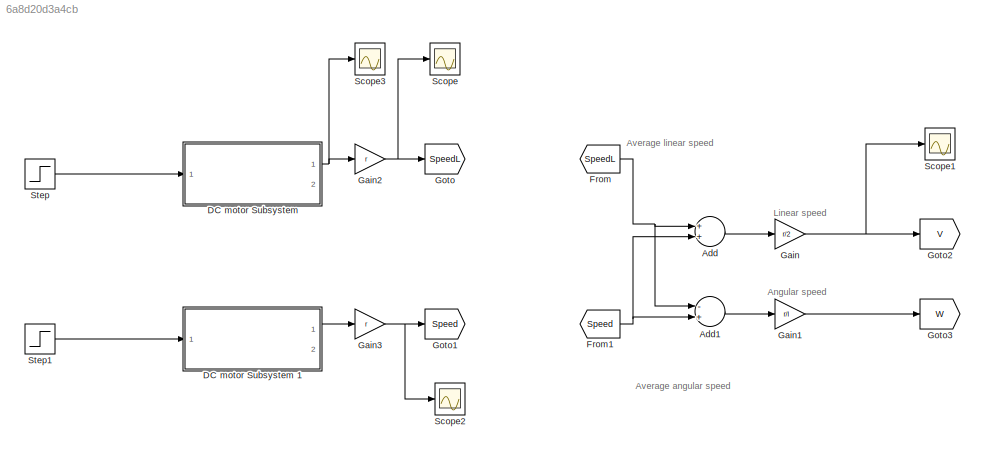
MODEL slx_6a8d20d3a4cb
KIND model
CONFIG AbsTol = auto
CONFIG EnableMultiTasking = off
CONFIG FixedStep = auto
CONFIG MaxStep = auto
CONFIG MinStep = auto
CONFIG RelTol = 1e-3
CONFIG SampleTimeConstraint = Unconstrained
CONFIG Solver = VariableStepAuto
CONFIG SolverName = VariableStepAuto
CONFIG StartTime = 0.0
CONFIG StopTime = 10.0
BLOCK [Sum] Add
  InputSameDT = off
  OutDataTypeStr = Inherit: Inherit via internal rule
  Ports = [2, 1]
  SaturateOnIntegerOverflow = off
BLOCK [Sum] Add1
  InputSameDT = off
  Inputs = -+
  OutDataTypeStr = Inherit: Inherit via internal rule
  Ports = [2, 1]
  SaturateOnIntegerOverflow = off
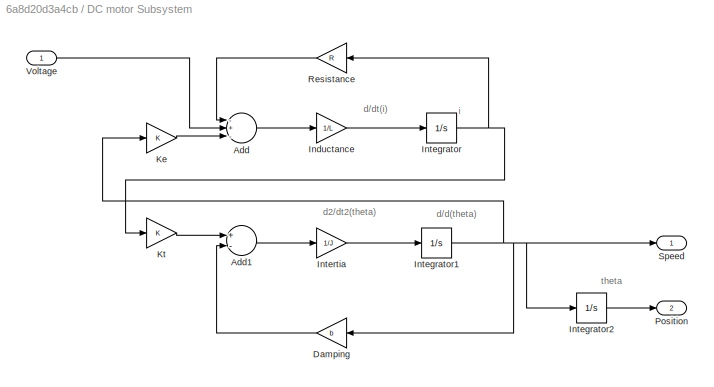
BLOCK [SubSystem] DC motor Subsystem 
  Ports = [1, 2]
  RequestExecContextInheritance = off
  Variant = off
BLOCK [Sum] DC motor Subsystem /Add
  InputSameDT = off
  Inputs = -+-
  OutDataTypeStr = Inherit: Inherit via internal rule
  Ports = [3, 1]
  SaturateOnIntegerOverflow = off
BLOCK [Sum] DC motor Subsystem /Add1
  InputSameDT = off
  Inputs = +-
  OutDataTypeStr = Inherit: Inherit via internal rule
  Ports = [2, 1]
  SaturateOnIntegerOverflow = off
BLOCK [Gain] DC motor Subsystem /Damping 
  Gain = b
  OutDataTypeStr = Inherit: Inherit via internal rule
  ParamDataTypeStr = Inherit: Inherit via internal rule
  SaturateOnIntegerOverflow = off
BLOCK [Gain] DC motor Subsystem /Inductance 
  Gain = 1/L
  OutDataTypeStr = Inherit: Inherit via internal rule
  ParamDataTypeStr = Inherit: Inherit via internal rule
  SaturateOnIntegerOverflow = off
BLOCK [Integrator] DC motor Subsystem /Integrator
  Ports = [1, 1]
BLOCK [Integrator] DC motor Subsystem /Integrator1
  Ports = [1, 1]
BLOCK [Integrator] DC motor Subsystem /Integrator2
  Ports = [1, 1]
BLOCK [Gain] DC motor Subsystem /Intertia 
  Gain = 1/J
  OutDataTypeStr = Inherit: Inherit via internal rule
  ParamDataTypeStr = Inherit: Inherit via internal rule
  SaturateOnIntegerOverflow = off
BLOCK [Gain] DC motor Subsystem /Ke
  Gain = K
  OutDataTypeStr = Inherit: Inherit via internal rule
  ParamDataTypeStr = Inherit: Inherit via internal rule
  SaturateOnIntegerOverflow = off
BLOCK [Gain] DC motor Subsystem /Kt 
  Gain = K
  OutDataTypeStr = Inherit: Inherit via internal rule
  ParamDataTypeStr = Inherit: Inherit via internal rule
  SaturateOnIntegerOverflow = off
BLOCK [Outport] DC motor Subsystem /Position 
  IconDisplay = Port number
  Port = 2
BLOCK [Gain] DC motor Subsystem /Resistance 
  Gain = R
  OutDataTypeStr = Inherit: Inherit via internal rule
  ParamDataTypeStr = Inherit: Inherit via internal rule
  SaturateOnIntegerOverflow = off
BLOCK [Outport] DC motor Subsystem /Speed 
  IconDisplay = Port number
BLOCK [Inport] DC motor Subsystem /Voltage 
  IconDisplay = Port number
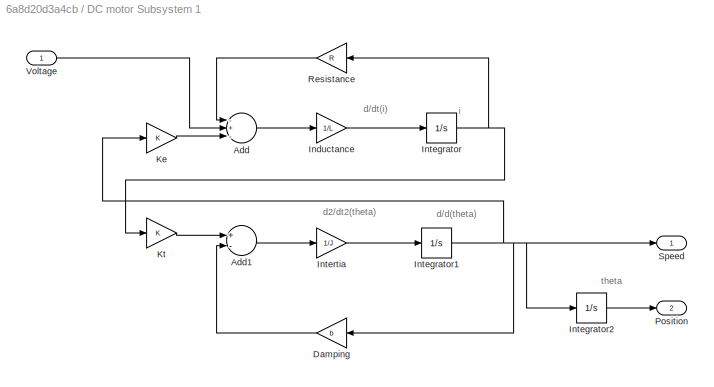
BLOCK [SubSystem] DC motor Subsystem 1
  Ports = [1, 2]
  RequestExecContextInheritance = off
  Variant = off
BLOCK [Sum] DC motor Subsystem 1/Add
  InputSameDT = off
  Inputs = -+-
  OutDataTypeStr = Inherit: Inherit via internal rule
  Ports = [3, 1]
  SaturateOnIntegerOverflow = off
BLOCK [Sum] DC motor Subsystem 1/Add1
  InputSameDT = off
  Inputs = +-
  OutDataTypeStr = Inherit: Inherit via internal rule
  Ports = [2, 1]
  SaturateOnIntegerOverflow = off
BLOCK [Gain] DC motor Subsystem 1/Damping 
  Gain = b
  OutDataTypeStr = Inherit: Inherit via internal rule
  ParamDataTypeStr = Inherit: Inherit via internal rule
  SaturateOnIntegerOverflow = off
BLOCK [Gain] DC motor Subsystem 1/Inductance 
  Gain = 1/L
  OutDataTypeStr = Inherit: Inherit via internal rule
  ParamDataTypeStr = Inherit: Inherit via internal rule
  SaturateOnIntegerOverflow = off
BLOCK [Integrator] DC motor Subsystem 1/Integrator
  Ports = [1, 1]
BLOCK [Integrator] DC motor Subsystem 1/Integrator1
  Ports = [1, 1]
BLOCK [Integrator] DC motor Subsystem 1/Integrator2
  Ports = [1, 1]
BLOCK [Gain] DC motor Subsystem 1/Intertia 
  Gain = 1/J
  OutDataTypeStr = Inherit: Inherit via internal rule
  ParamDataTypeStr = Inherit: Inherit via internal rule
  SaturateOnIntegerOverflow = off
BLOCK [Gain] DC motor Subsystem 1/Ke
  Gain = K
  OutDataTypeStr = Inherit: Inherit via internal rule
  ParamDataTypeStr = Inherit: Inherit via internal rule
  SaturateOnIntegerOverflow = off
BLOCK [Gain] DC motor Subsystem 1/Kt 
  Gain = K
  OutDataTypeStr = Inherit: Inherit via internal rule
  ParamDataTypeStr = Inherit: Inherit via internal rule
  SaturateOnIntegerOverflow = off
BLOCK [Outport] DC motor Subsystem 1/Position 
  IconDisplay = Port number
  Port = 2
BLOCK [Gain] DC motor Subsystem 1/Resistance 
  Gain = R
  OutDataTypeStr = Inherit: Inherit via internal rule
  ParamDataTypeStr = Inherit: Inherit via internal rule
  SaturateOnIntegerOverflow = off
BLOCK [Outport] DC motor Subsystem 1/Speed 
  IconDisplay = Port number
BLOCK [Inport] DC motor Subsystem 1/Voltage 
  IconDisplay = Port number
BLOCK [From] From
  GotoTag = SpeedL
BLOCK [From] From1
  GotoTag = Speed
BLOCK [Gain] Gain
  Commented = on
  Gain = r/2
  OutDataTypeStr = Inherit: Inherit via internal rule
  ParamDataTypeStr = Inherit: Inherit via internal rule
  SaturateOnIntegerOverflow = off
BLOCK [Gain] Gain1
  Commented = on
  Gain = r/l
  OutDataTypeStr = Inherit: Inherit via internal rule
  ParamDataTypeStr = Inherit: Inherit via internal rule
  SaturateOnIntegerOverflow = off
BLOCK [Gain] Gain2
  Gain = r
  OutDataTypeStr = Inherit: Inherit via internal rule
  ParamDataTypeStr = Inherit: Inherit via internal rule
  SaturateOnIntegerOverflow = off
BLOCK [Gain] Gain3
  Gain = r
  OutDataTypeStr = Inherit: Inherit via internal rule
  ParamDataTypeStr = Inherit: Inherit via internal rule
  SaturateOnIntegerOverflow = off
BLOCK [Goto] Goto
  GotoTag = SpeedL
BLOCK [Goto] Goto1
  GotoTag = Speed
BLOCK [Goto] Goto2
  GotoTag = V
BLOCK [Goto] Goto3
  GotoTag = W
BLOCK [Scope] Scope
  NumInputPorts = 1
  Ports = [1]
  ScopeSpecificationString = Simulink.scopes.TimeScopeBlockCfg('CurrentConfiguration', extmgr.ConfigurationSet(extmgr.Configuration('Core','General UI',true),extmgr.Configuration('Core','Source UI',true),extmgr.Configuration('Sources','WiredSimulink',true),extmgr.Configuration('Visuals','Time Domain',true,'SerializedDisplays',{struct('MinYLimReal','-4.49966','MaxYLimReal','40.49692','YLabelReal','','MinYLimMag','0.00000','Max...<+1356ch>
BLOCK [Scope] Scope1
  NumInputPorts = 1
  Ports = [1]
  ScopeSpecificationString = Simulink.scopes.TimeScopeBlockCfg('CurrentConfiguration', extmgr.ConfigurationSet(extmgr.Configuration('Core','General UI',true),extmgr.Configuration('Core','Source UI',true),extmgr.Configuration('Sources','WiredSimulink',true,'DataLoggingVariableName','ScopeData1'),extmgr.Configuration('Visuals','Time Domain',true,'SerializedDisplays',{struct('MinYLimReal','-4.75276','MaxYLimReal','42.77487','YLa...<+1394ch>
BLOCK [Scope] Scope2
  NumInputPorts = 1
  Ports = [1]
  ScopeSpecificationString = Simulink.scopes.TimeScopeBlockCfg('CurrentConfiguration', extmgr.ConfigurationSet(extmgr.Configuration('Core','General UI',true),extmgr.Configuration('Core','Source UI',true),extmgr.Configuration('Sources','WiredSimulink',true,'DataLoggingVariableName','ScopeData2'),extmgr.Configuration('Visuals','Time Domain',true,'SerializedDisplays',{struct('MinYLimReal','-2.81229','MaxYLimReal','25.31058','YLa...<+1395ch>
BLOCK [Scope] Scope3
  NumInputPorts = 1
  Ports = [1]
  ScopeSpecificationString = Simulink.scopes.TimeScopeBlockCfg('CurrentConfiguration', extmgr.ConfigurationSet(extmgr.Configuration('Core','General UI',true),extmgr.Configuration('Core','Source UI',true),extmgr.Configuration('Sources','WiredSimulink',true,'DataLoggingVariableName','ScopeData1'),extmgr.Configuration('Visuals','Time Domain',true,'SerializedDisplays',{struct('MinYLimReal','-89.99316','MaxYLimReal','809.93841','Y...<+1417ch>
BLOCK [Step] Step
  After = 8
  SampleTime = 0
  Time = 0.1
BLOCK [Step] Step1
  After = 5
  SampleTime = 0
  Time = 0.1
ANNOTATION (root): Angular speed
ANNOTATION (root): Average angular speed
ANNOTATION (root): Average linear speed
ANNOTATION (root): Linear speed
ANNOTATION DC motor Subsystem : d/d(theta)
ANNOTATION DC motor Subsystem : d/dt(i)
ANNOTATION DC motor Subsystem : d2/dt2(theta)
ANNOTATION DC motor Subsystem : i
ANNOTATION DC motor Subsystem : theta
ANNOTATION DC motor Subsystem 1: d/d(theta)
ANNOTATION DC motor Subsystem 1: d/dt(i)
ANNOTATION DC motor Subsystem 1: d2/dt2(theta)
ANNOTATION DC motor Subsystem 1: i
ANNOTATION DC motor Subsystem 1: theta
LINE Add1:1 -> Gain1:1
LINE Add:1 -> Gain:1
LINE DC motor Subsystem /Add1:1 -> DC motor Subsystem /Intertia :1
LINE DC motor Subsystem /Add:1 -> DC motor Subsystem /Inductance :1
LINE DC motor Subsystem /Damping :1 -> DC motor Subsystem /Add1:2
LINE DC motor Subsystem /Inductance :1 -> DC motor Subsystem /Integrator:1
NET DC motor Subsystem /Integrator1:1 -> DC motor Subsystem /Damping :1, DC motor Subsystem /Integrator2:1, DC motor Subsystem /Ke:1, DC motor Subsystem /Speed :1
LINE DC motor Subsystem /Integrator2:1 -> DC motor Subsystem /Position :1
NET DC motor Subsystem /Integrator:1 -> DC motor Subsystem /Kt :1, DC motor Subsystem /Resistance :1
LINE DC motor Subsystem /Intertia :1 -> DC motor Subsystem /Integrator1:1
LINE DC motor Subsystem /Ke:1 -> DC motor Subsystem /Add:3
LINE DC motor Subsystem /Kt :1 -> DC motor Subsystem /Add1:1
LINE DC motor Subsystem /Resistance :1 -> DC motor Subsystem /Add:1
LINE DC motor Subsystem /Voltage :1 -> DC motor Subsystem /Add:2
LINE DC motor Subsystem 1/Add1:1 -> DC motor Subsystem 1/Intertia :1
LINE DC motor Subsystem 1/Add:1 -> DC motor Subsystem 1/Inductance :1
LINE DC motor Subsystem 1/Damping :1 -> DC motor Subsystem 1/Add1:2
LINE DC motor Subsystem 1/Inductance :1 -> DC motor Subsystem 1/Integrator:1
NET DC motor Subsystem 1/Integrator1:1 -> DC motor Subsystem 1/Damping :1, DC motor Subsystem 1/Integrator2:1, DC motor Subsystem 1/Ke:1, DC motor Subsystem 1/Speed :1
LINE DC motor Subsystem 1/Integrator2:1 -> DC motor Subsystem 1/Position :1
NET DC motor Subsystem 1/Integrator:1 -> DC motor Subsystem 1/Kt :1, DC motor Subsystem 1/Resistance :1
LINE DC motor Subsystem 1/Intertia :1 -> DC motor Subsystem 1/Integrator1:1
LINE DC motor Subsystem 1/Ke:1 -> DC motor Subsystem 1/Add:3
LINE DC motor Subsystem 1/Kt :1 -> DC motor Subsystem 1/Add1:1
LINE DC motor Subsystem 1/Resistance :1 -> DC motor Subsystem 1/Add:1
LINE DC motor Subsystem 1/Voltage :1 -> DC motor Subsystem 1/Add:2
LINE DC motor Subsystem 1:1 -> Gain3:1
NET DC motor Subsystem :1 -> Gain2:1, Scope3:1
NET From1:1 -> Add1:2, Add:2
NET From:1 -> Add1:1, Add:1
LINE Gain1:1 -> Goto3:1
NET Gain2:1 -> Goto:1, Scope:1
NET Gain3:1 -> Goto1:1, Scope2:1
NET Gain:1 -> Goto2:1, Scope1:1
LINE Step1:1 -> DC motor Subsystem 1:1
LINE Step:1 -> DC motor Subsystem :1
note: NET lines group one-source signal fan-out (src -> all destinations, sorted); 1:1 wires keep LINE
